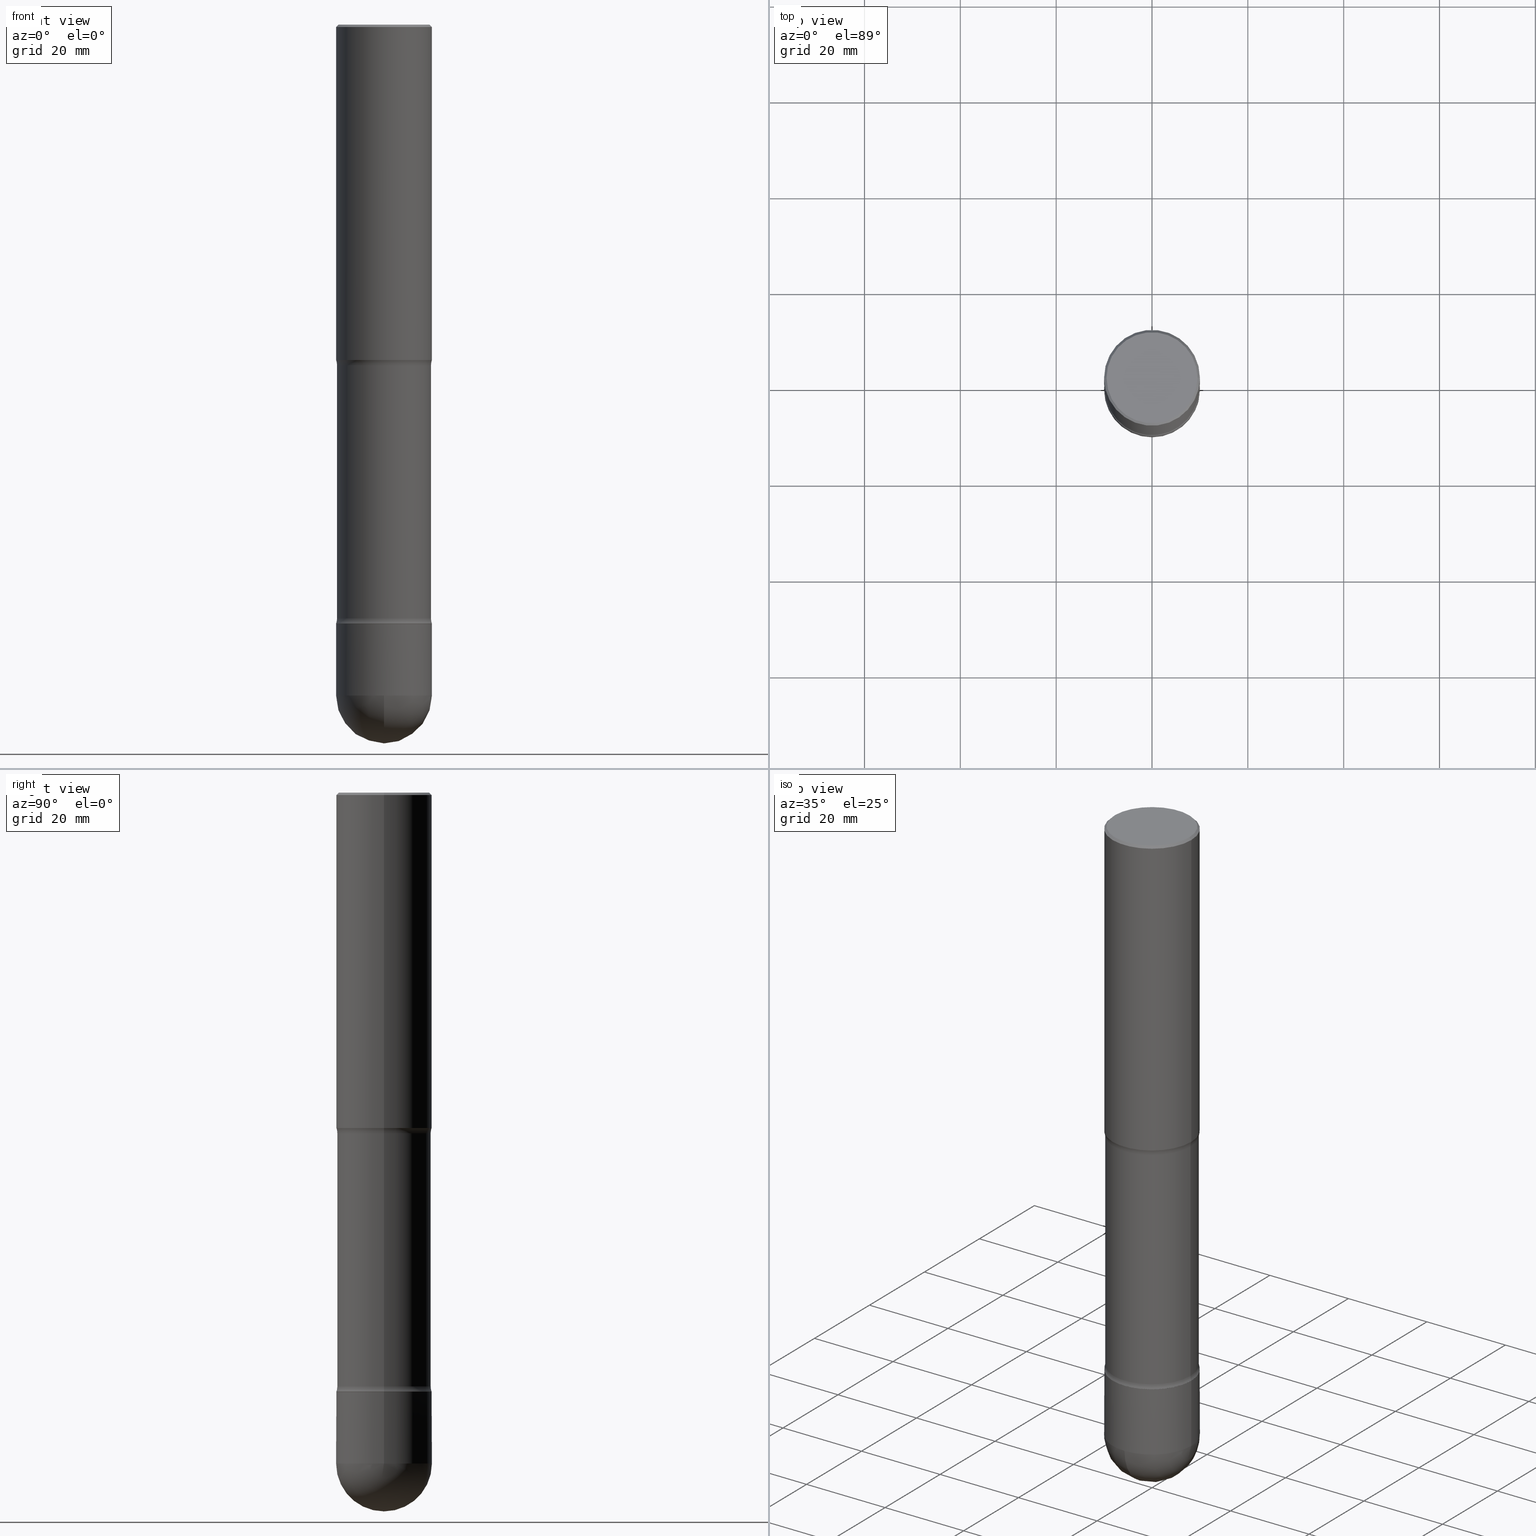
[diagram: canonical four-view strip — front | top / right | iso, engineering-drawing reading convention]
A machine part, canonical four-view strip (front | top / right | iso — engineering-drawing reading convention). The complete STEP part file that produces these views, byte-faithful:
ISO-10303-21;
HEADER;
FILE_DESCRIPTION (( 'STEP AP203' ),
    '1' );
FILE_NAME ('44620.STEP',
    '2024-02-29T19:25:54',
    ( '' ),
    ( '' ),
    'SwSTEP 2.0',
    'SolidWorks 2023',
    '' );
FILE_SCHEMA (( 'CONFIG_CONTROL_DESIGN' ));
ENDSEC;

DATA;
#1 = ADVANCED_FACE ( 'NONE', ( #346 ), #224, .F. ) ;
#2 = EDGE_LOOP ( 'NONE', ( #28, #543, #183, #172 ) ) ;
#3 = ORIENTED_EDGE ( 'NONE', *, *, #286, .T. ) ;
#4 = VERTEX_POINT ( 'NONE', #426 ) ;
#5 = TOROIDAL_SURFACE ( 'NONE', #42, 0.5112000000000129774, 0.1250000000000134892 ) ;
#6 = DIRECTION ( 'NONE',  ( -1.000000000000000000, 6.982962677686266711E-15, 0.000000000000000000 ) ) ;
#7 = PERSON_AND_ORGANIZATION ( #226, #302 ) ;
#8 = FACE_OUTER_BOUND ( 'NONE', #325, .T. ) ;
#9 = CARTESIAN_POINT ( 'NONE',  ( -0.3936999999999991617, -1.541590565338776243E-14, -4.921199999999999797 ) ) ;
#10 = DIRECTION ( 'NONE',  ( -1.000000000000000000, 6.982962677686265922E-15, 0.000000000000000000 ) ) ;
#11 = ORIENTED_EDGE ( 'NONE', *, *, #523, .F. ) ;
#12 = CIRCLE ( 'NONE', #418, 0.3861999999999995437 ) ;
#13 = CONICAL_SURFACE ( 'NONE', #562, 0.3931999999999991058, 0.7853981633980990917 ) ;
#14 = CARTESIAN_POINT ( 'NONE',  ( -0.3931999999999991058, -1.438842392770617915E-14, -4.921199999999999797 ) ) ;
#15 = ADVANCED_FACE ( 'NONE', ( #520 ), #509, .T. ) ;
#16 = FACE_OUTER_BOUND ( 'NONE', #299, .T. ) ;
#17 = EDGE_LOOP ( 'NONE', ( #209, #153 ) ) ;
#18 = DIRECTION ( 'NONE',  ( -1.000000000000000000, 6.982962677686265922E-15, -4.876176775795935793E-29 ) ) ;
#19 = ORIENTED_EDGE ( 'NONE', *, *, #271, .T. ) ;
#20 = CIRCLE ( 'NONE', #476, 0.3936999999999999389 ) ;
#21 = AXIS2_PLACEMENT_3D ( 'NONE', #104, #46, #10 ) ;
#22 = FACE_OUTER_BOUND ( 'NONE', #256, .T. ) ;
#23 = ORIENTED_EDGE ( 'NONE', *, *, #286, .F. ) ;
#24 = ADVANCED_FACE ( 'NONE', ( #124 ), #113, .T. ) ;
#25 = DIRECTION ( 'NONE',  ( 1.000000000000000000, -6.982962677686264344E-15, 0.000000000000000000 ) ) ;
#26 = CARTESIAN_POINT ( 'NONE',  ( 1.203464108899829379E-28, -1.718227796471488830E-14, -4.921199999999999797 ) ) ;
#27 = DIRECTION ( 'NONE',  ( 2.445468806185136597E-29, -3.491481338843145583E-15, -1.000000000000000000 ) ) ;
#28 = ORIENTED_EDGE ( 'NONE', *, *, #199, .F. ) ;
#29 = DIRECTION ( 'NONE',  ( 2.445468806185136597E-29, -3.491481338843145583E-15, -1.000000000000000000 ) ) ;
#30 = APPROVAL_DATE_TIME ( #349, #554 ) ;
#31 = CARTESIAN_POINT ( 'NONE',  ( 1.203464108899829379E-28, -1.718227796471488830E-14, -4.921199999999999797 ) ) ;
#32 = VECTOR ( 'NONE', #165, 39.37007874015748143 ) ;
#33 = MANIFOLD_SOLID_BREP ( 'Body-Move/Copy2[1]', #497 ) ;
#34 = CARTESIAN_POINT ( 'NONE',  ( 0.3861999999999993771, -1.983180229145424743E-14, -4.921199999999999797 ) ) ;
#35 = EDGE_CURVE ( 'NONE', #307, #473, #49, .T. ) ;
#36 = EDGE_LOOP ( 'NONE', ( #395, #233, #161, #182 ) ) ;
#37 = EDGE_LOOP ( 'NONE', ( #489, #76, #3, #47 ) ) ;
#38 = UNCERTAINTY_MEASURE_WITH_UNIT (LENGTH_MEASURE( 1.000000000000000082E-05 ), #140, 'distance_accuracy_value', 'NONE');
#39 = ADVANCED_FACE ( 'NONE', ( #565 ), #162, .F. ) ;
#40 = ORIENTED_EDGE ( 'NONE', *, *, #271, .F. ) ;
#41 = DIRECTION ( 'NONE',  ( 1.000000000000000000, -6.982962677686266711E-15, 4.876176775795935232E-29 ) ) ;
#42 = AXIS2_PLACEMENT_3D ( 'NONE', #423, #471, #510 ) ;
#43 = DIRECTION ( 'NONE',  ( -2.445468806185136597E-29, 3.491481338843145583E-15, 1.000000000000000000 ) ) ;
#44 = CARTESIAN_POINT ( 'NONE',  ( 0.5111999999999874422, -1.327816052295077947E-14, -2.798546805273079308 ) ) ;
#45 = EDGE_CURVE ( 'NONE', #202, #412, #87, .T. ) ;
#46 = DIRECTION ( 'NONE',  ( 2.445468806185136597E-29, -3.491481338843145583E-15, -1.000000000000000000 ) ) ;
#47 = ORIENTED_EDGE ( 'NONE', *, *, #222, .F. ) ;
#48 = FACE_OUTER_BOUND ( 'NONE', #117, .T. ) ;
#49 = CIRCLE ( 'NONE', #207, 0.3736999999999997546 ) ;
#50 = AXIS2_PLACEMENT_3D ( 'NONE', #195, #373, #57 ) ;
#51 = VECTOR ( 'NONE', #230, 39.37007874015748143 ) ;
#52 = PRODUCT_DEFINITION_SHAPE ( 'NONE', 'NONE',  #404 ) ;
#53 = EDGE_CURVE ( 'NONE', #313, #136, #82, .T. ) ;
#54 = LINE ( 'NONE', #92, #101 ) ;
#55 = DATE_AND_TIME ( #273, #450 ) ;
#56 = VERTEX_POINT ( 'NONE', #128 ) ;
#57 = DIRECTION ( 'NONE',  ( -1.000000000000000000, 6.982962677686267499E-15, -4.883557194083113462E-29 ) ) ;
#58 = DIRECTION ( 'NONE',  ( -2.445468806185136597E-29, 3.491481338843145583E-15, 1.000000000000000000 ) ) ;
#59 = CC_DESIGN_DATE_AND_TIME_ASSIGNMENT ( #81, #305, ( #432 ) ) ;
#60 = CARTESIAN_POINT ( 'NONE',  ( -0.3861999999999993771, -1.448545777859245492E-14, -4.921199999999999797 ) ) ;
#61 = EDGE_CURVE ( 'NONE', #56, #446, #20, .T. ) ;
#62 = AXIS2_PLACEMENT_3D ( 'NONE', #257, #437, #84 ) ;
#63 = VECTOR ( 'NONE', #288, 39.37007874015748143 ) ;
#64 = CC_DESIGN_APPROVAL ( #554, ( #244 ) ) ;
#65 = DIRECTION ( 'NONE',  ( -6.982962677686266711E-15, -1.000000000000000000, 3.491481338843145583E-15 ) ) ;
#66 = DIRECTION ( 'NONE',  ( 2.445468806185136597E-29, -3.491481338843145583E-15, -1.000000000000000000 ) ) ;
#67 = CARTESIAN_POINT ( 'NONE',  ( 0.3936999999999990507, -2.749192406205076511E-15, 1.919750796630855127E-29 ) ) ;
#68 = ORIENTED_EDGE ( 'NONE', *, *, #328, .F. ) ;
#69 = ORIENTED_EDGE ( 'NONE', *, *, #318, .T. ) ;
#70 = CARTESIAN_POINT ( 'NONE',  ( -0.3935673271255955563, -1.443272949243584217E-14, -4.920832672874404068 ) ) ;
#71 = SPHERICAL_SURFACE ( 'NONE', #83, 0.3936999999999993838 ) ;
#72 = ORIENTED_EDGE ( 'NONE', *, *, #35, .T. ) ;
#73 = AXIS2_PLACEMENT_3D ( 'NONE', #241, #382, #379 ) ;
#74 = EDGE_CURVE ( 'NONE', #528, #136, #260, .T. ) ;
#75 = PLANE ( 'NONE',  #177 ) ;
#76 = ORIENTED_EDGE ( 'NONE', *, *, #363, .T. ) ;
#77 = CARTESIAN_POINT ( 'NONE',  ( 0.000000000000000000, 0.000000000000000000, 0.000000000000000000 ) ) ;
#78 = CARTESIAN_POINT ( 'NONE',  ( -0.3936999999999998279, 2.679362779428217552E-15, -0.02000000000000033348 ) ) ;
#79 = EDGE_LOOP ( 'NONE', ( #218, #266, #335, #343 ) ) ;
#80 = FACE_OUTER_BOUND ( 'NONE', #513, .T. ) ;
#81 = DATE_AND_TIME ( #123, #236 ) ;
#82 = CIRCLE ( 'NONE', #132, 0.3936999999999993838 ) ;
#83 = AXIS2_PLACEMENT_3D ( 'NONE', #384, #507, #338 ) ;
#84 = DIRECTION ( 'NONE',  ( 1.000000000000000000, -6.982962677686265922E-15, 0.000000000000000000 ) ) ;
#85 = ORIENTED_EDGE ( 'NONE', *, *, #304, .F. ) ;
#86 = ORIENTED_EDGE ( 'NONE', *, *, #246, .T. ) ;
#87 = LINE ( 'NONE', #34, #505 ) ;
#88 = CARTESIAN_POINT ( 'NONE',  ( -0.3936999999999989952, -1.541590565338776243E-14, -5.511800000000000033 ) ) ;
#89 = ORIENTED_EDGE ( 'NONE', *, *, #53, .F. ) ;
#90 = CYLINDRICAL_SURFACE ( 'NONE', #417, 0.3936999999999990507 ) ;
#91 = ADVANCED_FACE ( 'NONE', ( #482 ), #90, .T. ) ;
#92 = CARTESIAN_POINT ( 'NONE',  ( 0.3936999999999998279, -2.770807688499514945E-15, -0.02000000000000033348 ) ) ;
#93 = AXIS2_PLACEMENT_3D ( 'NONE', #291, #201, #294 ) ;
#94 = DIRECTION ( 'NONE',  ( -1.000000000000000000, 7.105427357601001070E-15, -4.926315508542082329E-29 ) ) ;
#95 = CARTESIAN_POINT ( 'NONE',  ( 0.5112000000000129774, -2.054046401640354384E-14, -4.878553194726919173 ) ) ;
#96 = CARTESIAN_POINT ( 'NONE',  ( 1.203374280197098316E-28, -1.718099544891061913E-14, -4.920832672874404068 ) ) ;
#97 = ADVANCED_FACE ( 'NONE', ( #80 ), #180, .T. ) ;
#98 = ORIENTED_EDGE ( 'NONE', *, *, #217, .F. ) ;
#99 = CARTESIAN_POINT ( 'NONE',  ( -0.3936999999999998834, -1.443308555850980508E-14, -4.921199999999999797 ) ) ;
#100 = APPROVAL_DATE_TIME ( #495, #174 ) ;
#101 = VECTOR ( 'NONE', #239, 39.37007874015748143 ) ;
#102 = VERTEX_POINT ( 'NONE', #229 ) ;
#103 = AXIS2_PLACEMENT_3D ( 'NONE', #533, #141, #403 ) ;
#104 = CARTESIAN_POINT ( 'NONE',  ( 1.203464108899829379E-28, -1.718227796471488830E-14, -4.921199999999999797 ) ) ;
#105 = CALENDAR_DATE ( 2024, 29, 2 ) ;
#106 = ORIENTED_EDGE ( 'NONE', *, *, #74, .T. ) ;
#107 = DIRECTION ( 'NONE',  ( 1.000000000000000000, -6.982962677686270655E-15, 0.000000000000000000 ) ) ;
#108 = DIRECTION ( 'NONE',  ( -2.438088387897960049E-29, 3.491481338843145188E-15, 1.000000000000000000 ) ) ;
#109 = DIMENSIONAL_EXPONENTS ( 1.000000000000000000, 0.000000000000000000, 0.000000000000000000, 0.000000000000000000, 0.000000000000000000, 0.000000000000000000, 0.000000000000000000 ) ;
#110 = AXIS2_PLACEMENT_3D ( 'NONE', #499, #415, #18 ) ;
#111 = CARTESIAN_POINT ( 'NONE',  ( 6.843758914944385400E-29, -9.771073946490059360E-15, -2.798546805273079308 ) ) ;
#112 = ADVANCED_FACE ( 'NONE', ( #308 ), #319, .T. ) ;
#113 = CYLINDRICAL_SURFACE ( 'NONE', #438, 0.3936999999999998834 ) ;
#114 = FACE_OUTER_BOUND ( 'NONE', #2, .T. ) ;
#115 = SECURITY_CLASSIFICATION_LEVEL ( 'unclassified' ) ;
#116 = EDGE_CURVE ( 'NONE', #528, #547, #365, .T. ) ;
#117 = EDGE_LOOP ( 'NONE', ( #11, #422, #86, #534 ) ) ;
#118 = FACE_OUTER_BOUND ( 'NONE', #277, .T. ) ;
#119 = ORIENTED_EDGE ( 'NONE', *, *, #145, .T. ) ;
#120 = CIRCLE ( 'NONE', #198, 0.3931999999999991058 ) ;
#121 = APPROVAL_PERSON_ORGANIZATION ( #484, #554, #332 ) ;
#122 = DIRECTION ( 'NONE',  ( -2.445468806185136597E-29, 3.491481338843145583E-15, 1.000000000000000000 ) ) ;
#123 = CALENDAR_DATE ( 2024, 29, 2 ) ;
#124 = FACE_OUTER_BOUND ( 'NONE', #492, .T. ) ;
#125 = EDGE_CURVE ( 'NONE', #192, #4, #529, .T. ) ;
#126 = CARTESIAN_POINT ( 'NONE',  ( 0.000000000000000000, 0.000000000000000000, 0.000000000000000000 ) ) ;
#127 = PERSON_AND_ORGANIZATION ( #226, #302 ) ;
#128 = CARTESIAN_POINT ( 'NONE',  ( -0.3936999999999999389, -6.872981015512739596E-15, -2.755899999999999572 ) ) ;
#129 = DESIGN_CONTEXT ( 'detailed design', #434, 'design' ) ;
#130 = CALENDAR_DATE ( 2024, 29, 2 ) ;
#131 = VERTEX_POINT ( 'NONE', #190 ) ;
#132 = AXIS2_PLACEMENT_3D ( 'NONE', #398, #94, #274 ) ;
#133 = AXIS2_PLACEMENT_3D ( 'NONE', #213, #29, #463 ) ;
#134 = ORIENTED_EDGE ( 'NONE', *, *, #255, .F. ) ;
#135 = LENGTH_MEASURE_WITH_UNIT ( LENGTH_MEASURE( 0.02539999999999999897 ), #456 );
#136 = VERTEX_POINT ( 'NONE', #282 ) ;
#137 = DIRECTION ( 'NONE',  ( -2.445468806185136597E-29, 3.491481338843145583E-15, 1.000000000000000000 ) ) ;
#138 = DIRECTION ( 'NONE',  ( -1.000000000000000000, 6.982962677686266711E-15, 0.000000000000000000 ) ) ;
#139 = PERSON_AND_ORGANIZATION ( #226, #302 ) ;
#140 =( CONVERSION_BASED_UNIT ( 'INCH', #135 ) LENGTH_UNIT ( ) NAMED_UNIT ( #109 ) );
#141 = DIRECTION ( 'NONE',  ( 2.445468806185136597E-29, -3.491481338843145583E-15, -1.000000000000000000 ) ) ;
#142 = CIRCLE ( 'NONE', #430, 0.3936999999999991617 ) ;
#143 = CC_DESIGN_APPROVAL ( #527, ( #432 ) ) ;
#144 = ORIENTED_EDGE ( 'NONE', *, *, #116, .F. ) ;
#145 = EDGE_CURVE ( 'NONE', #473, #479, #276, .T. ) ;
#146 = DIRECTION ( 'NONE',  ( -2.445468806185136877E-29, 3.491481338843145188E-15, 1.000000000000000000 ) ) ;
#147 = CARTESIAN_POINT ( 'NONE',  ( 1.193034965701952550E-28, -1.703337743994265175E-14, -4.878553194726920061 ) ) ;
#148 = APPROVAL_ROLE ( '' ) ;
#149 = ORIENTED_EDGE ( 'NONE', *, *, #329, .T. ) ;
#150 = CARTESIAN_POINT ( 'NONE',  ( -0.3936999999999990507, 2.797406750687507687E-15, -1.936584745033351971E-29 ) ) ;
#151 = PERSON_AND_ORGANIZATION_ROLE ( 'design_owner' ) ;
#152 = TOROIDAL_SURFACE ( 'NONE', #50, 0.5111999999999874422, 0.1249999999999882733 ) ;
#153 = ORIENTED_EDGE ( 'NONE', *, *, #466, .T. ) ;
#154 = DIRECTION ( 'NONE',  ( 1.000000000000000000, -6.982962677686266711E-15, 0.000000000000000000 ) ) ;
#155 = ADVANCED_FACE ( 'NONE', ( #48 ), #455, .T. ) ;
#156 = DIRECTION ( 'NONE',  ( 2.445468806185136877E-29, -3.491481338843145188E-15, -1.000000000000000000 ) ) ;
#157 = PRODUCT ( '44620', '44620', '', ( #364 ) ) ;
#158 = DIRECTION ( 'NONE',  ( -1.000000000000000000, 6.982962677686265133E-15, -4.883557194083112340E-29 ) ) ;
#159 = DIRECTION ( 'NONE',  ( 1.000000000000000000, -6.982962677686265922E-15, 4.876176775795935793E-29 ) ) ;
#160 = COORDINATED_UNIVERSAL_TIME_OFFSET ( 5, 0, .BEHIND. ) ;
#161 = ORIENTED_EDGE ( 'NONE', *, *, #222, .T. ) ;
#162 = TOROIDAL_SURFACE ( 'NONE', #269, 0.5111999999999874422, 0.1249999999999882733 ) ;
#163 = AXIS2_PLACEMENT_3D ( 'NONE', #31, #549, #352 ) ;
#164 = ORIENTED_EDGE ( 'NONE', *, *, #61, .F. ) ;
#165 = DIRECTION ( 'NONE',  ( -2.445468806185136877E-29, 3.491481338843145188E-15, 1.000000000000000000 ) ) ;
#166 = LINE ( 'NONE', #171, #283 ) ;
#167 = ADVANCED_FACE ( 'NONE', ( #369 ), #488, .F. ) ;
#168 = DIRECTION ( 'NONE',  ( 2.445468806185136597E-29, -3.491481338843145583E-15, -1.000000000000000000 ) ) ;
#169 = ORIENTED_EDGE ( 'NONE', *, *, #508, .T. ) ;
#170 = DIRECTION ( 'NONE',  ( -6.982962677686266711E-15, -1.000000000000000000, 3.491481338843145583E-15 ) ) ;
#171 = CARTESIAN_POINT ( 'NONE',  ( 0.3936999999999998834, -1.988325602643753758E-14, -4.921199999999999797 ) ) ;
#172 = ORIENTED_EDGE ( 'NONE', *, *, #304, .T. ) ;
#173 = CARTESIAN_POINT ( 'NONE',  ( -0.3736999999999997546, 2.609533152651356226E-15, -1.822227261114939998E-29 ) ) ;
#174 = APPROVAL ( #279, 'UNSPECIFIED' ) ;
#175 = AXIS2_PLACEMENT_3D ( 'NONE', #361, #137, #316 ) ;
#176 = ADVANCED_FACE ( 'NONE', ( #8 ), #399, .T. ) ;
#177 = AXIS2_PLACEMENT_3D ( 'NONE', #334, #108, #159 ) ;
#178 = APPROVAL_PERSON_ORGANIZATION ( #7, #174, #148 ) ;
#179 = PERSON_AND_ORGANIZATION_ROLE ( 'classification_officer' ) ;
#180 = CYLINDRICAL_SURFACE ( 'NONE', #242, 0.3936999999999990507 ) ;
#181 = COORDINATED_UNIVERSAL_TIME_OFFSET ( 5, 0, .BEHIND. ) ;
#182 = ORIENTED_EDGE ( 'NONE', *, *, #380, .F. ) ;
#183 = ORIENTED_EDGE ( 'NONE', *, *, #380, .T. ) ;
#184 = AXIS2_PLACEMENT_3D ( 'NONE', #555, #210, #297 ) ;
#185 = ORIENTED_EDGE ( 'NONE', *, *, #329, .F. ) ;
#186 = EDGE_CURVE ( 'NONE', #131, #479, #351, .T. ) ;
#187 = COORDINATED_UNIVERSAL_TIME_OFFSET ( 5, 0, .BEHIND. ) ;
#188 = CARTESIAN_POINT ( 'NONE',  ( -0.3936999999999998279, 2.679362779428217552E-15, -0.02000000000000033348 ) ) ;
#189 = EDGE_CURVE ( 'NONE', #397, #547, #142, .T. ) ;
#190 = CARTESIAN_POINT ( 'NONE',  ( 0.3936999999999998279, -2.770807688499514945E-15, -0.02000000000000033348 ) ) ;
#191 = VECTOR ( 'NONE', #156, 39.37007874015748143 ) ;
#192 = VERTEX_POINT ( 'NONE', #490 ) ;
#193 = EDGE_CURVE ( 'NONE', #102, #374, #214, .T. ) ;
#194 = DIRECTION ( 'NONE',  ( -0.7071067811870077602, 7.493145998872017079E-15, 0.7071067811860873853 ) ) ;
#195 = CARTESIAN_POINT ( 'NONE',  ( 6.843758914944385400E-29, -9.771073946490059360E-15, -2.798546805273079308 ) ) ;
#196 = ORIENTED_EDGE ( 'NONE', *, *, #217, .T. ) ;
#197 = DIRECTION ( 'NONE',  ( -2.445468806185136597E-29, 3.491481338843145583E-15, 1.000000000000000000 ) ) ;
#198 = AXIS2_PLACEMENT_3D ( 'NONE', #206, #502, #247 ) ;
#199 = EDGE_CURVE ( 'NONE', #102, #412, #249, .T. ) ;
#200 = ORIENTED_EDGE ( 'NONE', *, *, #542, .T. ) ;
#201 = DIRECTION ( 'NONE',  ( -1.000000000000000000, 6.982962677686265133E-15, -4.883557194083111780E-29 ) ) ;
#202 = VERTEX_POINT ( 'NONE', #457 ) ;
#203 = LINE ( 'NONE', #60, #191 ) ;
#204 = DIRECTION ( 'NONE',  ( -1.000000000000000000, 6.982962677686266711E-15, 0.000000000000000000 ) ) ;
#205 = EDGE_CURVE ( 'NONE', #559, #374, #410, .T. ) ;
#206 = CARTESIAN_POINT ( 'NONE',  ( 1.203464108899829379E-28, -1.718227796471488830E-14, -4.921199999999999797 ) ) ;
#207 = AXIS2_PLACEMENT_3D ( 'NONE', #77, #168, #512 ) ;
#208 = CIRCLE ( 'NONE', #530, 0.3936999999999998279 ) ;
#209 = ORIENTED_EDGE ( 'NONE', *, *, #189, .T. ) ;
#210 = DIRECTION ( 'NONE',  ( 2.445468806185136597E-29, -3.491481338843145583E-15, -1.000000000000000000 ) ) ;
#211 = DIRECTION ( 'NONE',  ( -1.000000000000000000, 6.982962677686266711E-15, 0.000000000000000000 ) ) ;
#212 = ORIENTED_EDGE ( 'NONE', *, *, #435, .F. ) ;
#213 = CARTESIAN_POINT ( 'NONE',  ( 1.203464108899829379E-28, -1.718227796471488830E-14, -4.921199999999999797 ) ) ;
#214 = CIRCLE ( 'NONE', #472, 0.3935673271255955563 ) ;
#215 = APPROVAL_ROLE ( '' ) ;
#216 = ORIENTED_EDGE ( 'NONE', *, *, #205, .T. ) ;
#217 = EDGE_CURVE ( 'NONE', #202, #446, #498, .T. ) ;
#218 = ORIENTED_EDGE ( 'NONE', *, *, #205, .F. ) ;
#219 = DIRECTION ( 'NONE',  ( 2.445468806185136597E-29, -3.491481338843145583E-15, -1.000000000000000000 ) ) ;
#220 = ORIENTED_EDGE ( 'NONE', *, *, #560, .T. ) ;
#221 = APPLICATION_PROTOCOL_DEFINITION ( 'international standard', 'config_control_design', 1994, #254 ) ;
#222 = EDGE_CURVE ( 'NONE', #412, #427, #12, .T. ) ;
#223 = MANIFOLD_SOLID_BREP ( 'Body-Move/Copy2[2]', #366 ) ;
#224 = TOROIDAL_SURFACE ( 'NONE', #375, 0.5112000000000129774, 0.1250000000000134892 ) ;
#225 = AXIS2_PLACEMENT_3D ( 'NONE', #377, #331, #138 ) ;
#226 = PERSON ( 'UNSPECIFIED', 'UNSPECIFIED', 'UNSPECIFIED', ('UNSPECIFIED'), ('UNSPECIFIED'), ('UNSPECIFIED') ) ;
#227 =( GEOMETRIC_REPRESENTATION_CONTEXT ( 3 ) GLOBAL_UNCERTAINTY_ASSIGNED_CONTEXT ( ( #38 ) ) GLOBAL_UNIT_ASSIGNED_CONTEXT ( ( #140, #453, #536 ) ) REPRESENTATION_CONTEXT ( 'NONE', 'WORKASPACE' ) );
#228 = ORIENTED_EDGE ( 'NONE', *, *, #466, .F. ) ;
#229 = CARTESIAN_POINT ( 'NONE',  ( 0.3935673271255955563, -1.988106330864406077E-14, -4.920832672874404068 ) ) ;
#230 = DIRECTION ( 'NONE',  ( 0.7071067811870077602, -2.468850131087077001E-15, 0.7071067811860873853 ) ) ;
#231 = LINE ( 'NONE', #99, #63 ) ;
#232 = DIRECTION ( 'NONE',  ( 2.438088387897960049E-29, -3.491481338843145188E-15, -1.000000000000000000 ) ) ;
#233 = ORIENTED_EDGE ( 'NONE', *, *, #199, .T. ) ;
#234 = CARTESIAN_POINT ( 'NONE',  ( 1.203464108899829379E-28, -1.718227796471488830E-14, -4.921199999999999797 ) ) ;
#235 = CIRCLE ( 'NONE', #320, 0.3861999999999991551 ) ;
#236 = LOCAL_TIME ( 14, 25, 54.00000000000000000, #160 ) ;
#237 = DIRECTION ( 'NONE',  ( 0.000000000000000000, 0.000000000000000000, 1.000000000000000000 ) ) ;
#238 = CARTESIAN_POINT ( 'NONE',  ( -0.3931999999999991058, -1.438647766170034457E-14, -4.921199999999999797 ) ) ;
#239 = DIRECTION ( 'NONE',  ( 0.7071067811865426878, -7.319954787623238690E-15, -0.7071067811865523467 ) ) ;
#240 = DIRECTION ( 'NONE',  ( 1.000000000000000000, -6.982962677686266711E-15, 0.000000000000000000 ) ) ;
#241 = CARTESIAN_POINT ( 'NONE',  ( 0.000000000000000000, 0.000000000000000000, 0.000000000000000000 ) ) ;
#242 = AXIS2_PLACEMENT_3D ( 'NONE', #126, #447, #41 ) ;
#243 = AXIS2_PLACEMENT_3D ( 'NONE', #111, #383, #551 ) ;
#244 = PRODUCT_DEFINITION_FORMATION_WITH_SPECIFIED_SOURCE ( 'ANY', '', #157, .NOT_KNOWN. ) ;
#245 = CARTESIAN_POINT ( 'NONE',  ( 1.442488208652382782E-28, -2.064305021877940893E-14, -5.905499999999999972 ) ) ;
#246 = EDGE_CURVE ( 'NONE', #479, #56, #231, .T. ) ;
#247 = DIRECTION ( 'NONE',  ( -1.000000000000000000, 6.982962677686265922E-15, 0.000000000000000000 ) ) ;
#248 = SPHERICAL_SURFACE ( 'NONE', #93, 0.3936999999999993838 ) ;
#249 = CIRCLE ( 'NONE', #561, 0.1250000000000134892 ) ;
#250 = PRODUCT_RELATED_PRODUCT_CATEGORY ( 'detail', '', ( #157 ) ) ;
#251 = ORIENTED_EDGE ( 'NONE', *, *, #487, .T. ) ;
#252 = CARTESIAN_POINT ( 'NONE',  ( 0.3936999999999991617, -1.993147037091996521E-14, -4.921199999999999797 ) ) ;
#253 = PERSON_AND_ORGANIZATION ( #226, #302 ) ;
#254 = APPLICATION_CONTEXT ( 'configuration controlled 3d designs of mechanical parts and assemblies' ) ;
#255 = EDGE_CURVE ( 'NONE', #307, #131, #54, .T. ) ;
#256 = EDGE_LOOP ( 'NONE', ( #265, #468, #296, #287 ) ) ;
#257 = CARTESIAN_POINT ( 'NONE',  ( 1.203464108899829379E-28, -1.718227796471488830E-14, -4.921199999999999797 ) ) ;
#258 = PERSON_AND_ORGANIZATION ( #226, #302 ) ;
#259 = ADVANCED_FACE ( 'NONE', ( #462 ), #152, .F. ) ;
#260 = CIRCLE ( 'NONE', #175, 0.3936999999999989952 ) ;
#261 = CIRCLE ( 'NONE', #478, 0.3935673271255955563 ) ;
#262 = CC_DESIGN_PERSON_AND_ORGANIZATION_ASSIGNMENT ( #139, #284, ( #404 ) ) ;
#263 = ADVANCED_FACE ( 'NONE', ( #16 ), #540, .T. ) ;
#264 = ORIENTED_EDGE ( 'NONE', *, *, #378, .F. ) ;
#265 = ORIENTED_EDGE ( 'NONE', *, *, #318, .F. ) ;
#266 = ORIENTED_EDGE ( 'NONE', *, *, #421, .F. ) ;
#267 = DIRECTION ( 'NONE',  ( 1.000000000000000000, -6.982962677686266711E-15, 4.876176775795935232E-29 ) ) ;
#268 = CC_DESIGN_PERSON_AND_ORGANIZATION_ASSIGNMENT ( #298, #179, ( #432 ) ) ;
#269 = AXIS2_PLACEMENT_3D ( 'NONE', #362, #355, #314 ) ;
#270 = CIRCLE ( 'NONE', #243, 0.3861999999999991551 ) ;
#271 = EDGE_CURVE ( 'NONE', #559, #470, #518, .T. ) ;
#272 = DIRECTION ( 'NONE',  ( -1.000000000000000000, 6.982962677686265922E-15, -4.876176775795935793E-29 ) ) ;
#273 = CALENDAR_DATE ( 2024, 29, 2 ) ;
#274 = DIRECTION ( 'NONE',  ( -7.105427357601001070E-15, -1.000000000000000000, 0.000000000000000000 ) ) ;
#275 = ADVANCED_FACE ( 'NONE', ( #22 ), #248, .T. ) ;
#276 = LINE ( 'NONE', #188, #485 ) ;
#277 = EDGE_LOOP ( 'NONE', ( #68, #360 ) ) ;
#278 = DIRECTION ( 'NONE',  ( 6.860497997771531562E-15, 1.000000000000000000, -3.491481338843145583E-15 ) ) ;
#279 = APPROVAL_STATUS ( 'not_yet_approved' ) ;
#280 = CARTESIAN_POINT ( 'NONE',  ( 0.3931999999999991058, -1.992797888958112062E-14, -4.921199999999999797 ) ) ;
#281 = AXIS2_PLACEMENT_3D ( 'NONE', #402, #197, #240 ) ;
#282 = CARTESIAN_POINT ( 'NONE',  ( -2.797406750687373580E-15, -0.3937000000000184796, -5.511799999999999145 ) ) ;
#283 = VECTOR ( 'NONE', #342, 39.37007874015748143 ) ;
#284 = PERSON_AND_ORGANIZATION_ROLE ( 'creator' ) ;
#285 = EDGE_LOOP ( 'NONE', ( #503, #522, #85, #23 ) ) ;
#286 = EDGE_CURVE ( 'NONE', #333, #427, #203, .T. ) ;
#287 = ORIENTED_EDGE ( 'NONE', *, *, #542, .F. ) ;
#288 = DIRECTION ( 'NONE',  ( 2.445468806185136877E-29, -3.491481338843145188E-15, -1.000000000000000000 ) ) ;
#289 = ORIENTED_EDGE ( 'NONE', *, *, #557, .F. ) ;
#290 = DIRECTION ( 'NONE',  ( -2.445468806185136597E-29, 3.491481338843145583E-15, 1.000000000000000000 ) ) ;
#291 = CARTESIAN_POINT ( 'NONE',  ( 1.344526706912624446E-28, -1.929256118791808272E-14, -5.511800000000000033 ) ) ;
#292 = CARTESIAN_POINT ( 'NONE',  ( 6.739467482965617111E-29, -9.622173421717822812E-15, -2.755899999999999572 ) ) ;
#293 = VECTOR ( 'NONE', #194, 39.37007874015748143 ) ;
#294 = DIRECTION ( 'NONE',  ( 6.982962677686265133E-15, 1.000000000000000000, -2.775563112689121034E-15 ) ) ;
#295 = CARTESIAN_POINT ( 'NONE',  ( 1.203464108899829379E-28, -1.718227796471488830E-14, -4.921199999999999797 ) ) ;
#296 = ORIENTED_EDGE ( 'NONE', *, *, #74, .F. ) ;
#297 = DIRECTION ( 'NONE',  ( -1.000000000000000000, 6.982962677686269866E-15, 0.000000000000000000 ) ) ;
#298 = PERSON_AND_ORGANIZATION ( #226, #302 ) ;
#299 = EDGE_LOOP ( 'NONE', ( #303, #19 ) ) ;
#300 = CARTESIAN_POINT ( 'NONE',  ( -0.3861999999999991551, -7.074253760367628350E-15, -2.798546805273079308 ) ) ;
#301 = AXIS2_PLACEMENT_3D ( 'NONE', #428, #170, #25 ) ;
#302 = ORGANIZATION ( 'UNSPECIFIED', 'UNSPECIFIED', '' ) ;
#303 = ORIENTED_EDGE ( 'NONE', *, *, #421, .T. ) ;
#304 = EDGE_CURVE ( 'NONE', #427, #412, #449, .T. ) ;
#305 = DATE_TIME_ROLE ( 'classification_date' ) ;
#306 = DIRECTION ( 'NONE',  ( 2.445468806185136597E-29, -3.491481338843145583E-15, -1.000000000000000000 ) ) ;
#307 = VERTEX_POINT ( 'NONE', #337 ) ;
#308 = FACE_OUTER_BOUND ( 'NONE', #481, .T. ) ;
#309 = CC_DESIGN_PERSON_AND_ORGANIZATION_ASSIGNMENT ( #253, #519, ( #244 ) ) ;
#310 = ADVANCED_FACE ( 'NONE', ( #114 ), #5, .F. ) ;
#311 = ORIENTED_EDGE ( 'NONE', *, *, #125, .F. ) ;
#312 = CIRCLE ( 'NONE', #385, 0.3936999999999999389 ) ;
#313 = VERTEX_POINT ( 'NONE', #245 ) ;
#314 = DIRECTION ( 'NONE',  ( -1.000000000000000000, 6.982962677686267499E-15, -4.883557194083113462E-29 ) ) ;
#315 = ORIENTED_EDGE ( 'NONE', *, *, #378, .T. ) ;
#316 = DIRECTION ( 'NONE',  ( 1.000000000000000000, -6.982962677686266711E-15, 0.000000000000000000 ) ) ;
#317 = DIRECTION ( 'NONE',  ( -0.7071067811865426878, 2.468850131082206573E-15, -0.7071067811865523467 ) ) ;
#318 = EDGE_CURVE ( 'NONE', #313, #4, #407, .T. ) ;
#319 = CONICAL_SURFACE ( 'NONE', #62, 0.3931999999999991058, 0.7853981633980990917 ) ;
#320 = AXIS2_PLACEMENT_3D ( 'NONE', #388, #27, #514 ) ;
#321 = LOCAL_TIME ( 14, 25, 54.00000000000000000, #500 ) ;
#322 = DIRECTION ( 'NONE',  ( 2.445468806185136597E-29, -3.491481338843145583E-15, -1.000000000000000000 ) ) ;
#323 = EDGE_LOOP ( 'NONE', ( #89, #69, #311, #358 ) ) ;
#324 = DIRECTION ( 'NONE',  ( 1.000000000000000000, -6.982962677686268288E-15, 0.000000000000000000 ) ) ;
#325 = EDGE_LOOP ( 'NONE', ( #134, #72, #119, #442 ) ) ;
#326 = DIRECTION ( 'NONE',  ( -1.000000000000000000, 6.860497997771535507E-15, 0.000000000000000000 ) ) ;
#327 = PERSON_AND_ORGANIZATION ( #226, #302 ) ;
#328 = EDGE_CURVE ( 'NONE', #473, #307, #330, .T. ) ;
#329 = EDGE_CURVE ( 'NONE', #192, #397, #548, .T. ) ;
#330 = CIRCLE ( 'NONE', #73, 0.3736999999999997546 ) ;
#331 = DIRECTION ( 'NONE',  ( 2.445468806185136597E-29, -3.491481338843145583E-15, -1.000000000000000000 ) ) ;
#332 = APPROVAL_ROLE ( '' ) ;
#333 = VERTEX_POINT ( 'NONE', #300 ) ;
#334 = CARTESIAN_POINT ( 'NONE',  ( 2.609533152651355831E-15, 0.3736999999999997546, -1.300498063835582419E-15 ) ) ;
#335 = ORIENTED_EDGE ( 'NONE', *, *, #557, .T. ) ;
#336 = DIRECTION ( 'NONE',  ( -1.000000000000000000, 6.982962677686266711E-15, 0.000000000000000000 ) ) ;
#337 = CARTESIAN_POINT ( 'NONE',  ( 0.3736999999999997546, -2.667287895133367570E-15, 1.845150283989421736E-29 ) ) ;
#338 = DIRECTION ( 'NONE',  ( 6.982962677686265133E-15, 1.000000000000000000, -2.775563112689121034E-15 ) ) ;
#339 = AXIS2_PLACEMENT_3D ( 'NONE', #344, #469, #336 ) ;
#340 = DIRECTION ( 'NONE',  ( -1.000000000000000000, 6.982962677686267499E-15, 0.000000000000000000 ) ) ;
#341 = CARTESIAN_POINT ( 'NONE',  ( 0.3936999999999999389, -7.546979585969993124E-15, -2.755899999999999572 ) ) ;
#342 = DIRECTION ( 'NONE',  ( 2.445468806185136877E-29, -3.491481338843145188E-15, -1.000000000000000000 ) ) ;
#343 = ORIENTED_EDGE ( 'NONE', *, *, #193, .T. ) ;
#344 = CARTESIAN_POINT ( 'NONE',  ( 4.890937612370354609E-31, -6.982962677686407473E-17, -0.02000000000000033348 ) ) ;
#345 = FACE_OUTER_BOUND ( 'NONE', #79, .T. ) ;
#346 = FACE_OUTER_BOUND ( 'NONE', #36, .T. ) ;
#347 = ADVANCED_BREP_SHAPE_REPRESENTATION ( '44620', ( #33, #223, #409 ), #227 ) ;
#348 = FACE_OUTER_BOUND ( 'NONE', #37, .T. ) ;
#349 = DATE_AND_TIME ( #105, #321 ) ;
#350 = DIRECTION ( 'NONE',  ( 2.445468806185136597E-29, -3.491481338843145583E-15, -1.000000000000000000 ) ) ;
#351 = CIRCLE ( 'NONE', #103, 0.3936999999999998279 ) ;
#352 = DIRECTION ( 'NONE',  ( -1.000000000000000000, 6.982962677686267499E-15, 0.000000000000000000 ) ) ;
#353 = APPROVAL_PERSON_ORGANIZATION ( #258, #527, #215 ) ;
#354 = CARTESIAN_POINT ( 'NONE',  ( 0.000000000000000000, 0.000000000000000000, 0.000000000000000000 ) ) ;
#355 = DIRECTION ( 'NONE',  ( 2.445468806185136597E-29, -3.491481338843145583E-15, -1.000000000000000000 ) ) ;
#356 = APPROVAL_DATE_TIME ( #564, #527 ) ;
#357 = ORIENTED_EDGE ( 'NONE', *, *, #61, .T. ) ;
#358 = ORIENTED_EDGE ( 'NONE', *, *, #393, .F. ) ;
#359 = CIRCLE ( 'NONE', #545, 0.3936999999999989952 ) ;
#360 = ORIENTED_EDGE ( 'NONE', *, *, #35, .F. ) ;
#361 = CARTESIAN_POINT ( 'NONE',  ( 1.347893496593123646E-28, -1.924434684343564878E-14, -5.511800000000000033 ) ) ;
#362 = CARTESIAN_POINT ( 'NONE',  ( 6.843758914944385400E-29, -9.771073946490059360E-15, -2.798546805273079308 ) ) ;
#363 = EDGE_CURVE ( 'NONE', #202, #333, #235, .T. ) ;
#364 = MECHANICAL_CONTEXT ( 'NONE', #254, 'mechanical' ) ;
#365 = LINE ( 'NONE', #150, #406 ) ;
#366 = CLOSED_SHELL ( 'NONE', ( #112, #1, #15, #259, #24, #370, #176, #155, #39, #474, #310, #524, #263, #389 ) ) ;
#367 = AXIS2_PLACEMENT_3D ( 'NONE', #467, #65, #107 ) ;
#368 = CC_DESIGN_APPROVAL ( #174, ( #404 ) ) ;
#369 = FACE_OUTER_BOUND ( 'NONE', #17, .T. ) ;
#370 = ADVANCED_FACE ( 'NONE', ( #464 ), #440, .T. ) ;
#371 = DIRECTION ( 'NONE',  ( 6.860497997771531562E-15, 1.000000000000000000, -3.491481338843145583E-15 ) ) ;
#372 = APPLICATION_PROTOCOL_DEFINITION ( 'international standard', 'config_control_design', 1994, #434 ) ;
#373 = DIRECTION ( 'NONE',  ( 2.445468806185136597E-29, -3.491481338843145583E-15, -1.000000000000000000 ) ) ;
#374 = VERTEX_POINT ( 'NONE', #70 ) ;
#375 = AXIS2_PLACEMENT_3D ( 'NONE', #381, #350, #158 ) ;
#376 = CIRCLE ( 'NONE', #367, 0.1250000000000134892 ) ;
#377 = CARTESIAN_POINT ( 'NONE',  ( 4.890937612370354609E-31, -6.982962677686407473E-17, -0.02000000000000033348 ) ) ;
#378 = EDGE_CURVE ( 'NONE', #333, #56, #544, .T. ) ;
#379 = DIRECTION ( 'NONE',  ( -1.000000000000000000, 6.982962677686266711E-15, -4.876176775795935793E-29 ) ) ;
#380 = EDGE_CURVE ( 'NONE', #374, #427, #376, .T. ) ;
#381 = CARTESIAN_POINT ( 'NONE',  ( 1.193034965701952326E-28, -1.703337743994264860E-14, -4.878553194726919173 ) ) ;
#382 = DIRECTION ( 'NONE',  ( 2.445468806185136597E-29, -3.491481338843145583E-15, -1.000000000000000000 ) ) ;
#383 = DIRECTION ( 'NONE',  ( 2.445468806185136597E-29, -3.491481338843145583E-15, -1.000000000000000000 ) ) ;
#384 = CARTESIAN_POINT ( 'NONE',  ( 1.344526706912624446E-28, -1.929256118791808272E-14, -5.511800000000000033 ) ) ;
#385 = AXIS2_PLACEMENT_3D ( 'NONE', #292, #465, #204 ) ;
#386 = DIRECTION ( 'NONE',  ( -1.000000000000000000, 6.982962677686265922E-15, 0.000000000000000000 ) ) ;
#387 = CC_DESIGN_PERSON_AND_ORGANIZATION_ASSIGNMENT ( #127, #511, ( #244 ) ) ;
#388 = CARTESIAN_POINT ( 'NONE',  ( 6.843758914944385400E-29, -9.771073946490059360E-15, -2.798546805273079308 ) ) ;
#389 = ADVANCED_FACE ( 'NONE', ( #118 ), #75, .T. ) ;
#390 = DIRECTION ( 'NONE',  ( 1.000000000000000000, -6.982962677686268288E-15, 0.000000000000000000 ) ) ;
#391 = AXIS2_PLACEMENT_3D ( 'NONE', #517, #122, #390 ) ;
#392 = CC_DESIGN_SECURITY_CLASSIFICATION ( #432, ( #244 ) ) ;
#393 = EDGE_CURVE ( 'NONE', #136, #192, #486, .T. ) ;
#394 = SHAPE_DEFINITION_REPRESENTATION ( #52, #347 ) ;
#395 = ORIENTED_EDGE ( 'NONE', *, *, #193, .F. ) ;
#396 = EDGE_LOOP ( 'NONE', ( #431, #196, #251, #264 ) ) ;
#397 = VERTEX_POINT ( 'NONE', #252 ) ;
#398 = CARTESIAN_POINT ( 'NONE',  ( 1.344526706912624446E-28, -1.929256118791808272E-14, -5.511800000000000033 ) ) ;
#399 = CONICAL_SURFACE ( 'NONE', #225, 0.3936999999999998279, 0.7853981633974415066 ) ;
#400 = DIRECTION ( 'NONE',  ( 1.000000000000000000, 0.000000000000000000, 0.000000000000000000 ) ) ;
#401 = DIRECTION ( 'NONE',  ( 2.445468806185136597E-29, -3.491481338843145583E-15, -1.000000000000000000 ) ) ;
#402 = CARTESIAN_POINT ( 'NONE',  ( 1.347893496593123646E-28, -1.924434684343564878E-14, -5.511800000000000033 ) ) ;
#403 = DIRECTION ( 'NONE',  ( -1.000000000000000000, 6.982962677686266711E-15, 0.000000000000000000 ) ) ;
#404 = PRODUCT_DEFINITION ( 'UNKNOWN', '', #244, #129 ) ;
#405 = ORIENTED_EDGE ( 'NONE', *, *, #328, .T. ) ;
#406 = VECTOR ( 'NONE', #146, 39.37007874015748143 ) ;
#407 = CIRCLE ( 'NONE', #477, 0.3936999999999993838 ) ;
#408 = LINE ( 'NONE', #280, #51 ) ;
#409 = AXIS2_PLACEMENT_3D ( 'NONE', #411, #237, #400 ) ;
#410 = LINE ( 'NONE', #14, #293 ) ;
#411 = CARTESIAN_POINT ( 'NONE',  ( 0.000000000000000000, 0.000000000000000000, 0.000000000000000000 ) ) ;
#412 = VERTEX_POINT ( 'NONE', #433 ) ;
#413 = EDGE_LOOP ( 'NONE', ( #98, #212, #315, #357 ) ) ;
#414 = DIRECTION ( 'NONE',  ( -1.000000000000000000, 6.982962677686269077E-15, 0.000000000000000000 ) ) ;
#415 = DIRECTION ( 'NONE',  ( 2.438088387897960049E-29, -3.491481338843145188E-15, -1.000000000000000000 ) ) ;
#416 = ORIENTED_EDGE ( 'NONE', *, *, #145, .F. ) ;
#417 = AXIS2_PLACEMENT_3D ( 'NONE', #354, #525, #267 ) ;
#418 = AXIS2_PLACEMENT_3D ( 'NONE', #147, #460, #494 ) ;
#419 = CARTESIAN_POINT ( 'NONE',  ( -0.3861999999999995437, -1.433655725382021838E-14, -4.878553194726920061 ) ) ;
#420 = FACE_OUTER_BOUND ( 'NONE', #323, .T. ) ;
#421 = EDGE_CURVE ( 'NONE', #470, #559, #120, .T. ) ;
#422 = ORIENTED_EDGE ( 'NONE', *, *, #186, .T. ) ;
#423 = CARTESIAN_POINT ( 'NONE',  ( 1.193034965701952326E-28, -1.703337743994264860E-14, -4.878553194726919173 ) ) ;
#424 = CARTESIAN_POINT ( 'NONE',  ( 1.344526706912624446E-28, -1.929256118791808272E-14, -5.511800000000000033 ) ) ;
#425 = CARTESIAN_POINT ( 'NONE',  ( 4.890937612370354609E-31, -6.982962677686407473E-17, -0.02000000000000033348 ) ) ;
#426 = CARTESIAN_POINT ( 'NONE',  ( 2.749192406205212195E-15, 0.3936999999999799549, -5.511800000000000921 ) ) ;
#427 = VERTEX_POINT ( 'NONE', #419 ) ;
#428 = CARTESIAN_POINT ( 'NONE',  ( -0.5111999999999874422, -6.201383425656927053E-15, -2.798546805273079308 ) ) ;
#429 = AXIS2_PLACEMENT_3D ( 'NONE', #44, #371, #539 ) ;
#430 = AXIS2_PLACEMENT_3D ( 'NONE', #537, #451, #324 ) ;
#431 = ORIENTED_EDGE ( 'NONE', *, *, #363, .F. ) ;
#432 = SECURITY_CLASSIFICATION ( '', '', #115 ) ;
#433 = CARTESIAN_POINT ( 'NONE',  ( 0.3861999999999995437, -1.605175001995571548E-14, -4.878553194726920061 ) ) ;
#434 = APPLICATION_CONTEXT ( 'configuration controlled 3d designs of mechanical parts and assemblies' ) ;
#435 = EDGE_CURVE ( 'NONE', #333, #202, #270, .T. ) ;
#436 = ORIENTED_EDGE ( 'NONE', *, *, #255, .T. ) ;
#437 = DIRECTION ( 'NONE',  ( -2.445468806185136597E-29, 3.491481338843145583E-15, 1.000000000000000000 ) ) ;
#438 = AXIS2_PLACEMENT_3D ( 'NONE', #295, #306, #386 ) ;
#439 = APPROVAL_STATUS ( 'not_yet_approved' ) ;
#440 = CONICAL_SURFACE ( 'NONE', #339, 0.3936999999999998279, 0.7853981633974415066 ) ;
#441 = CARTESIAN_POINT ( 'NONE',  ( 6.739467482965617111E-29, -9.622173421717822812E-15, -2.755899999999999572 ) ) ;
#442 = ORIENTED_EDGE ( 'NONE', *, *, #186, .F. ) ;
#443 = DIRECTION ( 'NONE',  ( 2.445468806185136877E-29, -3.491481338843145188E-15, -1.000000000000000000 ) ) ;
#444 = CC_DESIGN_PERSON_AND_ORGANIZATION_ASSIGNMENT ( #327, #151, ( #157 ) ) ;
#445 = CARTESIAN_POINT ( 'NONE',  ( 1.203374280197098316E-28, -1.718099544891061913E-14, -4.920832672874404068 ) ) ;
#446 = VERTEX_POINT ( 'NONE', #341 ) ;
#447 = DIRECTION ( 'NONE',  ( -2.445468806185136597E-29, 3.491481338843145583E-15, 1.000000000000000000 ) ) ;
#448 = AXIS2_PLACEMENT_3D ( 'NONE', #26, #66, #340 ) ;
#449 = CIRCLE ( 'NONE', #184, 0.3861999999999995437 ) ;
#450 = LOCAL_TIME ( 14, 25, 54.00000000000000000, #461 ) ;
#451 = DIRECTION ( 'NONE',  ( -2.445468806185136597E-29, 3.491481338843145583E-15, 1.000000000000000000 ) ) ;
#452 = APPROVAL_STATUS ( 'not_yet_approved' ) ;
#453 =( NAMED_UNIT ( * ) PLANE_ANGLE_UNIT ( ) SI_UNIT ( $, .RADIAN. ) );
#454 = CC_DESIGN_DATE_AND_TIME_ASSIGNMENT ( #55, #541, ( #404 ) ) ;
#455 = CYLINDRICAL_SURFACE ( 'NONE', #21, 0.3936999999999998834 ) ;
#456 =( LENGTH_UNIT ( ) NAMED_UNIT ( * ) SI_UNIT ( $, .METRE. ) );
#457 = CARTESIAN_POINT ( 'NONE',  ( 0.3861999999999991551, -1.237187487833494687E-14, -2.798546805273079308 ) ) ;
#458 = AXIS2_PLACEMENT_3D ( 'NONE', #546, #290, #154 ) ;
#459 = LOCAL_TIME ( 14, 25, 54.00000000000000000, #187 ) ;
#460 = DIRECTION ( 'NONE',  ( 2.445468806185136597E-29, -3.491481338843145583E-15, -1.000000000000000000 ) ) ;
#461 = COORDINATED_UNIVERSAL_TIME_OFFSET ( 5, 0, .BEHIND. ) ;
#462 = FACE_OUTER_BOUND ( 'NONE', #396, .T. ) ;
#463 = DIRECTION ( 'NONE',  ( -1.000000000000000000, 6.982962677686265922E-15, 0.000000000000000000 ) ) ;
#464 = FACE_OUTER_BOUND ( 'NONE', #566, .T. ) ;
#465 = DIRECTION ( 'NONE',  ( 2.445468806185136597E-29, -3.491481338843145583E-15, -1.000000000000000000 ) ) ;
#466 = EDGE_CURVE ( 'NONE', #547, #397, #550, .T. ) ;
#467 = CARTESIAN_POINT ( 'NONE',  ( -0.5112000000000129774, -1.346368691910933722E-14, -4.878553194726919173 ) ) ;
#468 = ORIENTED_EDGE ( 'NONE', *, *, #53, .T. ) ;
#469 = DIRECTION ( 'NONE',  ( 2.445468806185136597E-29, -3.491481338843145583E-15, -1.000000000000000000 ) ) ;
#470 = VERTEX_POINT ( 'NONE', #558 ) ;
#471 = DIRECTION ( 'NONE',  ( 2.445468806185136597E-29, -3.491481338843145583E-15, -1.000000000000000000 ) ) ;
#472 = AXIS2_PLACEMENT_3D ( 'NONE', #96, #322, #483 ) ;
#473 = VERTEX_POINT ( 'NONE', #173 ) ;
#474 = ADVANCED_FACE ( 'NONE', ( #348 ), #521, .T. ) ;
#475 = ORIENTED_EDGE ( 'NONE', *, *, #393, .T. ) ;
#476 = AXIS2_PLACEMENT_3D ( 'NONE', #441, #219, #6 ) ;
#477 = AXIS2_PLACEMENT_3D ( 'NONE', #424, #506, #504 ) ;
#478 = AXIS2_PLACEMENT_3D ( 'NONE', #445, #401, #414 ) ;
#479 = VERTEX_POINT ( 'NONE', #78 ) ;
#480 = ADVANCED_FACE ( 'NONE', ( #420 ), #71, .T. ) ;
#481 = EDGE_LOOP ( 'NONE', ( #40, #216, #220, #289 ) ) ;
#482 = FACE_OUTER_BOUND ( 'NONE', #531, .T. ) ;
#483 = DIRECTION ( 'NONE',  ( -1.000000000000000000, 6.982962677686269077E-15, 0.000000000000000000 ) ) ;
#484 = PERSON_AND_ORGANIZATION ( #226, #302 ) ;
#485 = VECTOR ( 'NONE', #317, 39.37007874015748143 ) ;
#486 = CIRCLE ( 'NONE', #458, 0.3936999999999989952 ) ;
#487 = EDGE_CURVE ( 'NONE', #446, #56, #312, .T. ) ;
#488 = PLANE ( 'NONE',  #535 ) ;
#489 = ORIENTED_EDGE ( 'NONE', *, *, #45, .F. ) ;
#490 = CARTESIAN_POINT ( 'NONE',  ( 0.3936999999999989952, -2.096250481028034702E-14, -5.511800000000000033 ) ) ;
#491 = CALENDAR_DATE ( 2024, 29, 2 ) ;
#492 = EDGE_LOOP ( 'NONE', ( #169, #496, #164, #493 ) ) ;
#493 = ORIENTED_EDGE ( 'NONE', *, *, #246, .F. ) ;
#494 = DIRECTION ( 'NONE',  ( -1.000000000000000000, 6.982962677686269866E-15, 0.000000000000000000 ) ) ;
#495 = DATE_AND_TIME ( #491, #459 ) ;
#496 = ORIENTED_EDGE ( 'NONE', *, *, #523, .T. ) ;
#497 = CLOSED_SHELL ( 'NONE', ( #91, #275, #480, #97, #167 ) ) ;
#498 = CIRCLE ( 'NONE', #429, 0.1249999999999882871 ) ;
#499 = CARTESIAN_POINT ( 'NONE',  ( 2.745700924866353805E-15, 0.3931999999999818973, -4.921200000000001573 ) ) ;
#500 = COORDINATED_UNIVERSAL_TIME_OFFSET ( 5, 0, .BEHIND. ) ;
#501 = ORIENTED_EDGE ( 'NONE', *, *, #189, .F. ) ;
#502 = DIRECTION ( 'NONE',  ( 2.445468806185136597E-29, -3.491481338843145583E-15, -1.000000000000000000 ) ) ;
#503 = ORIENTED_EDGE ( 'NONE', *, *, #435, .T. ) ;
#504 = DIRECTION ( 'NONE',  ( 6.982962677686265922E-15, 1.000000000000000000, 0.000000000000000000 ) ) ;
#505 = VECTOR ( 'NONE', #443, 39.37007874015748143 ) ;
#506 = DIRECTION ( 'NONE',  ( 1.000000000000000000, -6.982962677686265922E-15, 4.883557194083112340E-29 ) ) ;
#507 = DIRECTION ( 'NONE',  ( -1.000000000000000000, 6.982962677686265133E-15, -4.883557194083111780E-29 ) ) ;
#508 = EDGE_CURVE ( 'NONE', #479, #131, #208, .T. ) ;
#509 = CYLINDRICAL_SURFACE ( 'NONE', #448, 0.3861999999999993771 ) ;
#510 = DIRECTION ( 'NONE',  ( -1.000000000000000000, 6.982962677686265133E-15, -4.883557194083112340E-29 ) ) ;
#511 = PERSON_AND_ORGANIZATION_ROLE ( 'design_supplier' ) ;
#512 = DIRECTION ( 'NONE',  ( -1.000000000000000000, 6.982962677686266711E-15, -4.876176775795935793E-29 ) ) ;
#513 = EDGE_LOOP ( 'NONE', ( #144, #106, #475, #149, #228 ) ) ;
#514 = DIRECTION ( 'NONE',  ( -1.000000000000000000, 6.982962677686266711E-15, 0.000000000000000000 ) ) ;
#515 = CARTESIAN_POINT ( 'NONE',  ( 1.203464108899829379E-28, -1.718227796471488830E-14, -4.921199999999999797 ) ) ;
#516 = ORIENTED_EDGE ( 'NONE', *, *, #508, .F. ) ;
#517 = CARTESIAN_POINT ( 'NONE',  ( 1.203464108899829379E-28, -1.718227796471488830E-14, -4.921199999999999797 ) ) ;
#518 = CIRCLE ( 'NONE', #133, 0.3931999999999991058 ) ;
#519 = PERSON_AND_ORGANIZATION_ROLE ( 'creator' ) ;
#520 = FACE_OUTER_BOUND ( 'NONE', #285, .T. ) ;
#521 = CYLINDRICAL_SURFACE ( 'NONE', #163, 0.3861999999999993771 ) ;
#522 = ORIENTED_EDGE ( 'NONE', *, *, #45, .T. ) ;
#523 = EDGE_CURVE ( 'NONE', #131, #446, #166, .T. ) ;
#524 = ADVANCED_FACE ( 'NONE', ( #345 ), #13, .T. ) ;
#525 = DIRECTION ( 'NONE',  ( -2.445468806185136597E-29, 3.491481338843145583E-15, 1.000000000000000000 ) ) ;
#526 = ORIENTED_EDGE ( 'NONE', *, *, #116, .T. ) ;
#527 = APPROVAL ( #439, 'UNSPECIFIED' ) ;
#528 = VERTEX_POINT ( 'NONE', #88 ) ;
#529 = CIRCLE ( 'NONE', #281, 0.3936999999999989952 ) ;
#530 = AXIS2_PLACEMENT_3D ( 'NONE', #425, #553, #211 ) ;
#531 = EDGE_LOOP ( 'NONE', ( #200, #526, #501, #185, #556 ) ) ;
#532 = DIRECTION ( 'NONE',  ( 1.000000000000000000, -6.982962677686266711E-15, 0.000000000000000000 ) ) ;
#533 = CARTESIAN_POINT ( 'NONE',  ( 4.890937612370354609E-31, -6.982962677686407473E-17, -0.02000000000000033348 ) ) ;
#534 = ORIENTED_EDGE ( 'NONE', *, *, #487, .F. ) ;
#535 = AXIS2_PLACEMENT_3D ( 'NONE', #234, #232, #272 ) ;
#536 =( NAMED_UNIT ( * ) SI_UNIT ( $, .STERADIAN. ) SOLID_ANGLE_UNIT ( ) );
#537 = CARTESIAN_POINT ( 'NONE',  ( 1.203464108899829379E-28, -1.718227796471488830E-14, -4.921199999999999797 ) ) ;
#538 = CARTESIAN_POINT ( 'NONE',  ( 1.347893496593123646E-28, -1.924434684343564878E-14, -5.511800000000000033 ) ) ;
#539 = DIRECTION ( 'NONE',  ( -1.000000000000000000, 6.860497997771536296E-15, 0.000000000000000000 ) ) ;
#540 = PLANE ( 'NONE',  #110 ) ;
#541 = DATE_TIME_ROLE ( 'creation_date' ) ;
#542 = EDGE_CURVE ( 'NONE', #4, #528, #359, .T. ) ;
#543 = ORIENTED_EDGE ( 'NONE', *, *, #560, .F. ) ;
#544 = CIRCLE ( 'NONE', #301, 0.1249999999999882871 ) ;
#545 = AXIS2_PLACEMENT_3D ( 'NONE', #538, #43, #532 ) ;
#546 = CARTESIAN_POINT ( 'NONE',  ( 1.347893496593123646E-28, -1.924434684343564878E-14, -5.511800000000000033 ) ) ;
#547 = VERTEX_POINT ( 'NONE', #9 ) ;
#548 = LINE ( 'NONE', #67, #32 ) ;
#549 = DIRECTION ( 'NONE',  ( 2.445468806185136597E-29, -3.491481338843145583E-15, -1.000000000000000000 ) ) ;
#550 = CIRCLE ( 'NONE', #391, 0.3936999999999991617 ) ;
#551 = DIRECTION ( 'NONE',  ( -1.000000000000000000, 6.982962677686266711E-15, 0.000000000000000000 ) ) ;
#552 = LOCAL_TIME ( 14, 25, 54.00000000000000000, #181 ) ;
#553 = DIRECTION ( 'NONE',  ( 2.445468806185136597E-29, -3.491481338843145583E-15, -1.000000000000000000 ) ) ;
#554 = APPROVAL ( #452, 'UNSPECIFIED' ) ;
#555 = CARTESIAN_POINT ( 'NONE',  ( 1.193034965701952550E-28, -1.703337743994265175E-14, -4.878553194726920061 ) ) ;
#556 = ORIENTED_EDGE ( 'NONE', *, *, #125, .T. ) ;
#557 = EDGE_CURVE ( 'NONE', #470, #102, #408, .T. ) ;
#558 = CARTESIAN_POINT ( 'NONE',  ( 0.3931999999999991058, -1.992862014748325994E-14, -4.921199999999999797 ) ) ;
#559 = VERTEX_POINT ( 'NONE', #238 ) ;
#560 = EDGE_CURVE ( 'NONE', #374, #102, #261, .T. ) ;
#561 = AXIS2_PLACEMENT_3D ( 'NONE', #95, #278, #326 ) ;
#562 = AXIS2_PLACEMENT_3D ( 'NONE', #515, #58, #563 ) ;
#563 = DIRECTION ( 'NONE',  ( 1.000000000000000000, -6.982962677686265922E-15, 0.000000000000000000 ) ) ;
#564 = DATE_AND_TIME ( #130, #552 ) ;
#565 = FACE_OUTER_BOUND ( 'NONE', #413, .T. ) ;
#566 = EDGE_LOOP ( 'NONE', ( #405, #436, #516, #416 ) ) ;
ENDSEC;
END-ISO-10303-21;
